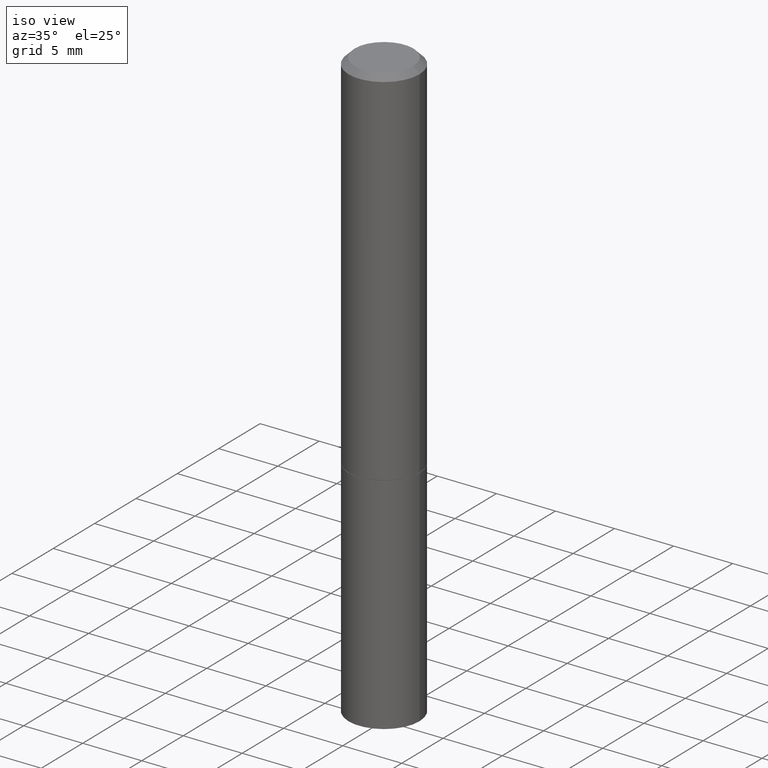
[diagram: clean part render]
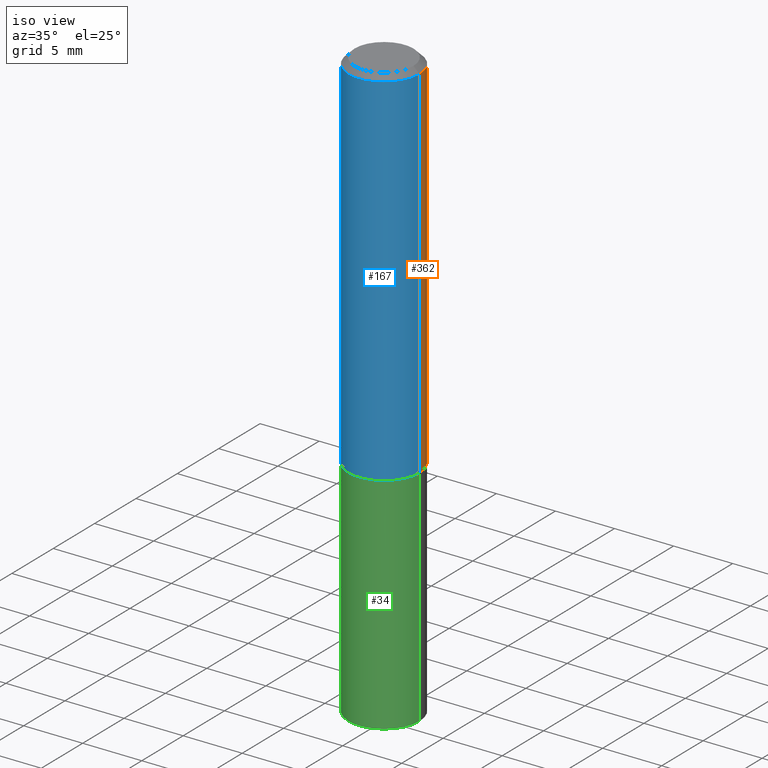
[diagram: same view with three faces highlighted in distinct colors, each labeled with its STEP entity id]
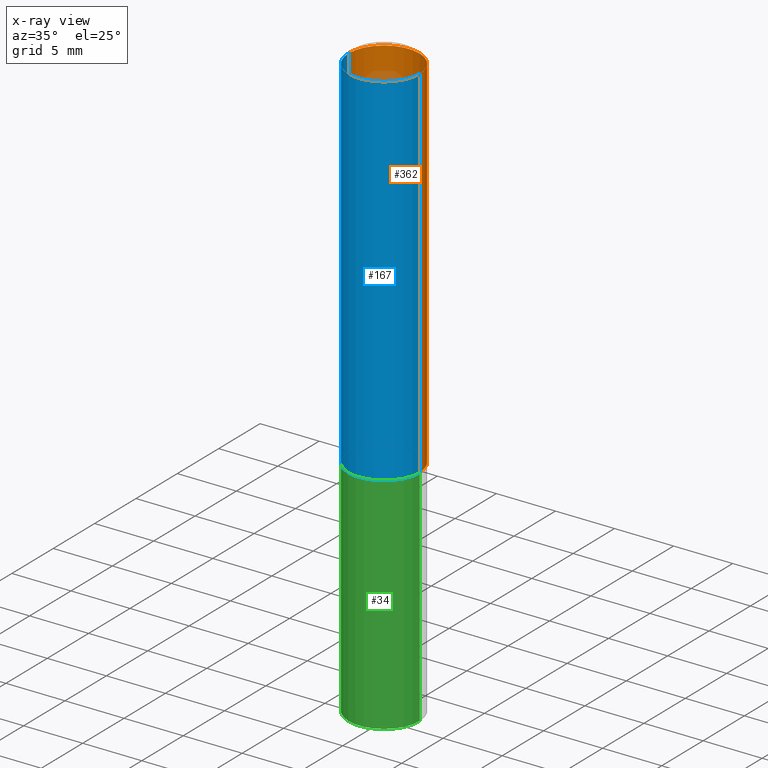
[diagram: x-ray of the same camera — body ghosted, the three highlighted faces saturated]
A machine part, iso view with three faces highlighted in distinct colors.
The next image is the same camera in x-ray (body ghosted, the three faces saturated) — at least one of them is partly hidden behind the body in this view.
Their STEP definitions:

[orange] entity #362 — the highlighted cylindrical surface (partial cylindrical patch) has radius 2.9997 mm, axis along (-0, 0, 1).
#1 = ORIENTED_EDGE ( 'NONE', *, *, #63, .F. ) ;
#6 = VERTEX_POINT ( 'NONE', #37 ) ;
#17 = EDGE_LOOP ( 'NONE', ( #113, #186, #1, #169 ) ) ;
#18 = DIRECTION ( 'NONE',  ( -2.445468806185136597E-29, 3.491481338843145583E-15, 1.000000000000000000 ) ) ;
#32 = DIRECTION ( 'NONE',  ( 1.000000000000000000, -6.982962677686266711E-15, 4.876176775795935793E-29 ) ) ;
#37 = CARTESIAN_POINT ( 'NONE',  ( -0.1180999999999999966, -1.324694588815359885E-15, -1.219500000000000028 ) ) ;
#49 = CARTESIAN_POINT ( 'NONE',  ( 2.982249209142773869E-29, -4.257861492719216809E-15, -1.219500000000000028 ) ) ;
#58 = CYLINDRICAL_SURFACE ( 'NONE', #193, 0.1180999999999999134 ) ;
#62 = CARTESIAN_POINT ( 'NONE',  ( -0.1180999999999998301, 7.548582654578837811E-16, -0.02000000000000003511 ) ) ;
#63 = EDGE_CURVE ( 'NONE', #230, #115, #89, .T. ) ;
#74 = VECTOR ( 'NONE', #202, 39.37007874015748143 ) ;
#75 = CARTESIAN_POINT ( 'NONE',  ( 0.1180999999999999966, -5.082549384953964283E-15, -1.219500000000000028 ) ) ;
#84 = DIRECTION ( 'NONE',  ( -2.445468806185136597E-29, 3.491481338843145583E-15, 1.000000000000000000 ) ) ;
#89 = CIRCLE ( 'NONE', #139, 0.1180999999999998301 ) ;
#98 = DIRECTION ( 'NONE',  ( -2.445468806185136597E-29, 3.491481338843145583E-15, 1.000000000000000000 ) ) ;
#105 = CARTESIAN_POINT ( 'NONE',  ( 0.1180999999999998301, -8.800544403136797528E-16, -0.02000000000000003511 ) ) ;
#113 = ORIENTED_EDGE ( 'NONE', *, *, #137, .T. ) ;
#115 = VERTEX_POINT ( 'NONE', #62 ) ;
#137 = EDGE_CURVE ( 'NONE', #143, #6, #206, .T. ) ;
#139 = AXIS2_PLACEMENT_3D ( 'NONE', #322, #98, #182 ) ;
#143 = VERTEX_POINT ( 'NONE', #75 ) ;
#169 = ORIENTED_EDGE ( 'NONE', *, *, #209, .F. ) ;
#170 = AXIS2_PLACEMENT_3D ( 'NONE', #49, #18, #197 ) ;
#182 = DIRECTION ( 'NONE',  ( 1.000000000000000000, -6.982962677686266711E-15, 0.000000000000000000 ) ) ;
#186 = ORIENTED_EDGE ( 'NONE', *, *, #214, .T. ) ;
#193 = AXIS2_PLACEMENT_3D ( 'NONE', #231, #84, #32 ) ;
#197 = DIRECTION ( 'NONE',  ( 1.000000000000000000, -6.982962677686265133E-15, 0.000000000000000000 ) ) ;
#200 = VECTOR ( 'NONE', #360, 39.37007874015748143 ) ;
#202 = DIRECTION ( 'NONE',  ( -2.445468806185136877E-29, 3.491481338843145188E-15, 1.000000000000000000 ) ) ;
#206 = CIRCLE ( 'NONE', #170, 0.1180999999999999966 ) ;
#209 = EDGE_CURVE ( 'NONE', #143, #230, #246, .T. ) ;
#214 = EDGE_CURVE ( 'NONE', #6, #115, #304, .T. ) ;
#229 = FACE_OUTER_BOUND ( 'NONE', #17, .T. ) ;
#230 = VERTEX_POINT ( 'NONE', #105 ) ;
#231 = CARTESIAN_POINT ( 'NONE',  ( 0.000000000000000000, 0.000000000000000000, 0.000000000000000000 ) ) ;
#246 = LINE ( 'NONE', #250, #200 ) ;
#250 = CARTESIAN_POINT ( 'NONE',  ( 0.1180999999999999134, -8.246878922347474737E-16, 5.758764772214996237E-30 ) ) ;
#304 = LINE ( 'NONE', #331, #74 ) ;
#322 = CARTESIAN_POINT ( 'NONE',  ( 4.890937612370281041E-31, -6.982962677686302702E-17, -0.02000000000000003511 ) ) ;
#331 = CARTESIAN_POINT ( 'NONE',  ( -0.1180999999999999134, 8.391509709326777040E-16, -5.809262341591039580E-30 ) ) ;
#360 = DIRECTION ( 'NONE',  ( -2.445468806185136877E-29, 3.491481338843145188E-15, 1.000000000000000000 ) ) ;
#362 = ADVANCED_FACE ( 'NONE', ( #229 ), #58, .T. ) ;

[blue] entity #167 — the highlighted cylindrical surface (partial cylindrical patch) has radius 2.9997 mm, axis along (-0, 0, 1).
#6 = VERTEX_POINT ( 'NONE', #37 ) ;
#19 = DIRECTION ( 'NONE',  ( -2.445468806185136597E-29, 3.491481338843145583E-15, 1.000000000000000000 ) ) ;
#22 = DIRECTION ( 'NONE',  ( 1.000000000000000000, -6.982962677686266711E-15, 4.876176775795935793E-29 ) ) ;
#27 = ORIENTED_EDGE ( 'NONE', *, *, #214, .F. ) ;
#29 = ORIENTED_EDGE ( 'NONE', *, *, #209, .T. ) ;
#37 = CARTESIAN_POINT ( 'NONE',  ( -0.1180999999999999966, -1.324694588815359885E-15, -1.219500000000000028 ) ) ;
#39 = AXIS2_PLACEMENT_3D ( 'NONE', #364, #103, #257 ) ;
#42 = EDGE_LOOP ( 'NONE', ( #27, #83, #29, #255 ) ) ;
#47 = CYLINDRICAL_SURFACE ( 'NONE', #340, 0.1180999999999999134 ) ;
#62 = CARTESIAN_POINT ( 'NONE',  ( -0.1180999999999998301, 7.548582654578837811E-16, -0.02000000000000003511 ) ) ;
#74 = VECTOR ( 'NONE', #202, 39.37007874015748143 ) ;
#75 = CARTESIAN_POINT ( 'NONE',  ( 0.1180999999999999966, -5.082549384953964283E-15, -1.219500000000000028 ) ) ;
#83 = ORIENTED_EDGE ( 'NONE', *, *, #319, .T. ) ;
#99 = CARTESIAN_POINT ( 'NONE',  ( 4.890937612370281041E-31, -6.982962677686302702E-17, -0.02000000000000003511 ) ) ;
#103 = DIRECTION ( 'NONE',  ( -2.445468806185136597E-29, 3.491481338843145583E-15, 1.000000000000000000 ) ) ;
#105 = CARTESIAN_POINT ( 'NONE',  ( 0.1180999999999998301, -8.800544403136797528E-16, -0.02000000000000003511 ) ) ;
#107 = AXIS2_PLACEMENT_3D ( 'NONE', #99, #19, #299 ) ;
#115 = VERTEX_POINT ( 'NONE', #62 ) ;
#135 = CARTESIAN_POINT ( 'NONE',  ( 0.000000000000000000, 0.000000000000000000, 0.000000000000000000 ) ) ;
#143 = VERTEX_POINT ( 'NONE', #75 ) ;
#167 = ADVANCED_FACE ( 'NONE', ( #302 ), #47, .T. ) ;
#180 = CIRCLE ( 'NONE', #39, 0.1180999999999999966 ) ;
#200 = VECTOR ( 'NONE', #360, 39.37007874015748143 ) ;
#202 = DIRECTION ( 'NONE',  ( -2.445468806185136877E-29, 3.491481338843145188E-15, 1.000000000000000000 ) ) ;
#209 = EDGE_CURVE ( 'NONE', #143, #230, #246, .T. ) ;
#214 = EDGE_CURVE ( 'NONE', #6, #115, #304, .T. ) ;
#224 = CIRCLE ( 'NONE', #107, 0.1180999999999998301 ) ;
#230 = VERTEX_POINT ( 'NONE', #105 ) ;
#246 = LINE ( 'NONE', #250, #200 ) ;
#250 = CARTESIAN_POINT ( 'NONE',  ( 0.1180999999999999134, -8.246878922347474737E-16, 5.758764772214996237E-30 ) ) ;
#255 = ORIENTED_EDGE ( 'NONE', *, *, #291, .F. ) ;
#257 = DIRECTION ( 'NONE',  ( 1.000000000000000000, -6.982962677686265133E-15, 0.000000000000000000 ) ) ;
#279 = DIRECTION ( 'NONE',  ( -2.445468806185136597E-29, 3.491481338843145583E-15, 1.000000000000000000 ) ) ;
#291 = EDGE_CURVE ( 'NONE', #115, #230, #224, .T. ) ;
#299 = DIRECTION ( 'NONE',  ( 1.000000000000000000, -6.982962677686266711E-15, 0.000000000000000000 ) ) ;
#302 = FACE_OUTER_BOUND ( 'NONE', #42, .T. ) ;
#304 = LINE ( 'NONE', #331, #74 ) ;
#319 = EDGE_CURVE ( 'NONE', #6, #143, #180, .T. ) ;
#331 = CARTESIAN_POINT ( 'NONE',  ( -0.1180999999999999134, 8.391509709326777040E-16, -5.809262341591039580E-30 ) ) ;
#340 = AXIS2_PLACEMENT_3D ( 'NONE', #135, #279, #22 ) ;
#360 = DIRECTION ( 'NONE',  ( -2.445468806185136877E-29, 3.491481338843145188E-15, 1.000000000000000000 ) ) ;
#364 = CARTESIAN_POINT ( 'NONE',  ( 2.982249209142773869E-29, -4.257861492719216809E-15, -1.219500000000000028 ) ) ;

[green] entity #34 — the highlighted cylindrical surface (partial cylindrical patch) has radius 2.9997 mm, axis along (-0, 0, 1).
#20 = CARTESIAN_POINT ( 'NONE',  ( 0.1180999999999999966, -7.697668907747479970E-15, -1.968500000000000139 ) ) ;
#24 = EDGE_CURVE ( 'NONE', #232, #124, #316, .T. ) ;
#34 = ADVANCED_FACE ( 'NONE', ( #211 ), #354, .T. ) ;
#52 = AXIS2_PLACEMENT_3D ( 'NONE', #277, #195, #72 ) ;
#57 = ORIENTED_EDGE ( 'NONE', *, *, #146, .F. ) ;
#60 = DIRECTION ( 'NONE',  ( -2.445468806185136597E-29, 3.491481338843145583E-15, 1.000000000000000000 ) ) ;
#64 = DIRECTION ( 'NONE',  ( 1.000000000000000000, -6.982962677686265133E-15, 0.000000000000000000 ) ) ;
#72 = DIRECTION ( 'NONE',  ( 1.000000000000000000, -6.982962677686265133E-15, 0.000000000000000000 ) ) ;
#73 = DIRECTION ( 'NONE',  ( -2.445468806185136877E-29, 3.491481338843145188E-15, 1.000000000000000000 ) ) ;
#77 = EDGE_LOOP ( 'NONE', ( #57, #295, #289, #154 ) ) ;
#79 = CIRCLE ( 'NONE', #52, 0.1180999999999999966 ) ;
#91 = CARTESIAN_POINT ( 'NONE',  ( 2.984694677948959472E-29, -4.261352974058059028E-15, -1.220499999999999918 ) ) ;
#100 = CARTESIAN_POINT ( 'NONE',  ( 0.1180999999999999966, -8.246878922347480654E-16, 5.758764772215000440E-30 ) ) ;
#124 = VERTEX_POINT ( 'NONE', #233 ) ;
#127 = VECTOR ( 'NONE', #73, 39.37007874015748143 ) ;
#146 = EDGE_CURVE ( 'NONE', #318, #232, #276, .T. ) ;
#154 = ORIENTED_EDGE ( 'NONE', *, *, #24, .F. ) ;
#158 = DIRECTION ( 'NONE',  ( 1.000000000000000000, -6.982962677686266711E-15, 4.876176775795936353E-29 ) ) ;
#159 = EDGE_CURVE ( 'NONE', #318, #228, #79, .T. ) ;
#165 = VECTOR ( 'NONE', #166, 39.37007874015748143 ) ;
#166 = DIRECTION ( 'NONE',  ( -2.445468806185136877E-29, 3.491481338843145188E-15, 1.000000000000000000 ) ) ;
#191 = CARTESIAN_POINT ( 'NONE',  ( -0.1180999999999999966, 8.391509709326782957E-16, -5.809262341591043784E-30 ) ) ;
#195 = DIRECTION ( 'NONE',  ( -2.445468806185136597E-29, 3.491481338843145583E-15, 1.000000000000000000 ) ) ;
#211 = FACE_OUTER_BOUND ( 'NONE', #77, .T. ) ;
#222 = LINE ( 'NONE', #100, #127 ) ;
#228 = VERTEX_POINT ( 'NONE', #20 ) ;
#232 = VERTEX_POINT ( 'NONE', #330 ) ;
#233 = CARTESIAN_POINT ( 'NONE',  ( 0.1180999999999999966, -5.086040866292807290E-15, -1.220499999999999918 ) ) ;
#240 = EDGE_CURVE ( 'NONE', #228, #124, #222, .T. ) ;
#244 = AXIS2_PLACEMENT_3D ( 'NONE', #325, #60, #158 ) ;
#248 = CARTESIAN_POINT ( 'NONE',  ( -0.1180999999999999966, -4.728016023852716776E-15, -1.968500000000000139 ) ) ;
#253 = AXIS2_PLACEMENT_3D ( 'NONE', #91, #265, #64 ) ;
#265 = DIRECTION ( 'NONE',  ( -2.445468806185136597E-29, 3.491481338843145583E-15, 1.000000000000000000 ) ) ;
#276 = LINE ( 'NONE', #191, #165 ) ;
#277 = CARTESIAN_POINT ( 'NONE',  ( 4.813905344975441835E-29, -6.872981015512731707E-15, -1.968500000000000139 ) ) ;
#289 = ORIENTED_EDGE ( 'NONE', *, *, #240, .T. ) ;
#295 = ORIENTED_EDGE ( 'NONE', *, *, #159, .T. ) ;
#316 = CIRCLE ( 'NONE', #253, 0.1180999999999999966 ) ;
#318 = VERTEX_POINT ( 'NONE', #248 ) ;
#325 = CARTESIAN_POINT ( 'NONE',  ( 0.000000000000000000, 0.000000000000000000, 0.000000000000000000 ) ) ;
#330 = CARTESIAN_POINT ( 'NONE',  ( -0.1180999999999999966, -4.728016023852716776E-15, -1.220499999999999918 ) ) ;
#354 = CYLINDRICAL_SURFACE ( 'NONE', #244, 0.1180999999999999966 ) ;